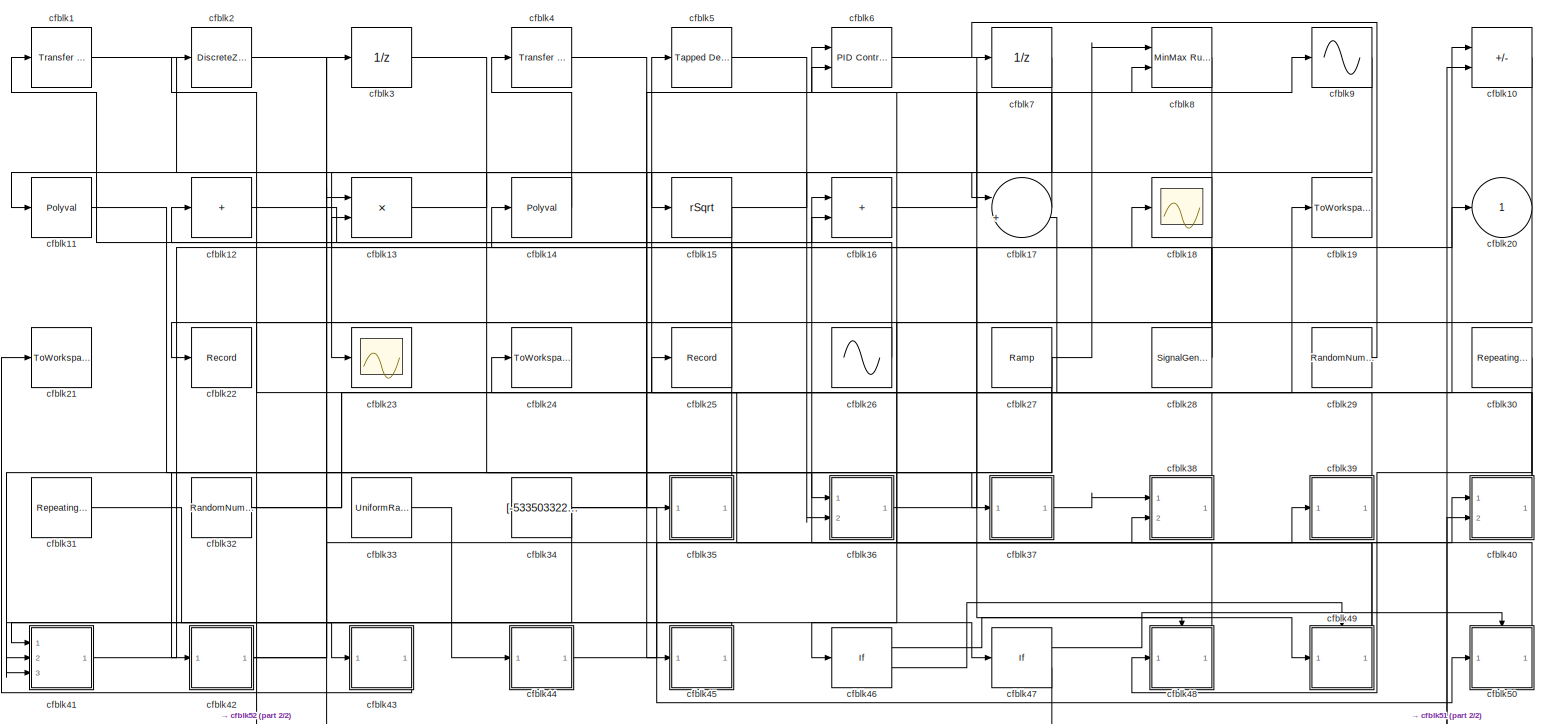
[diagram: root canvas - part 1/2, most of the canvas]
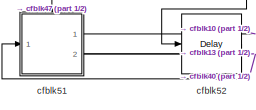
[diagram: root canvas - part 2/2, bottom left region]
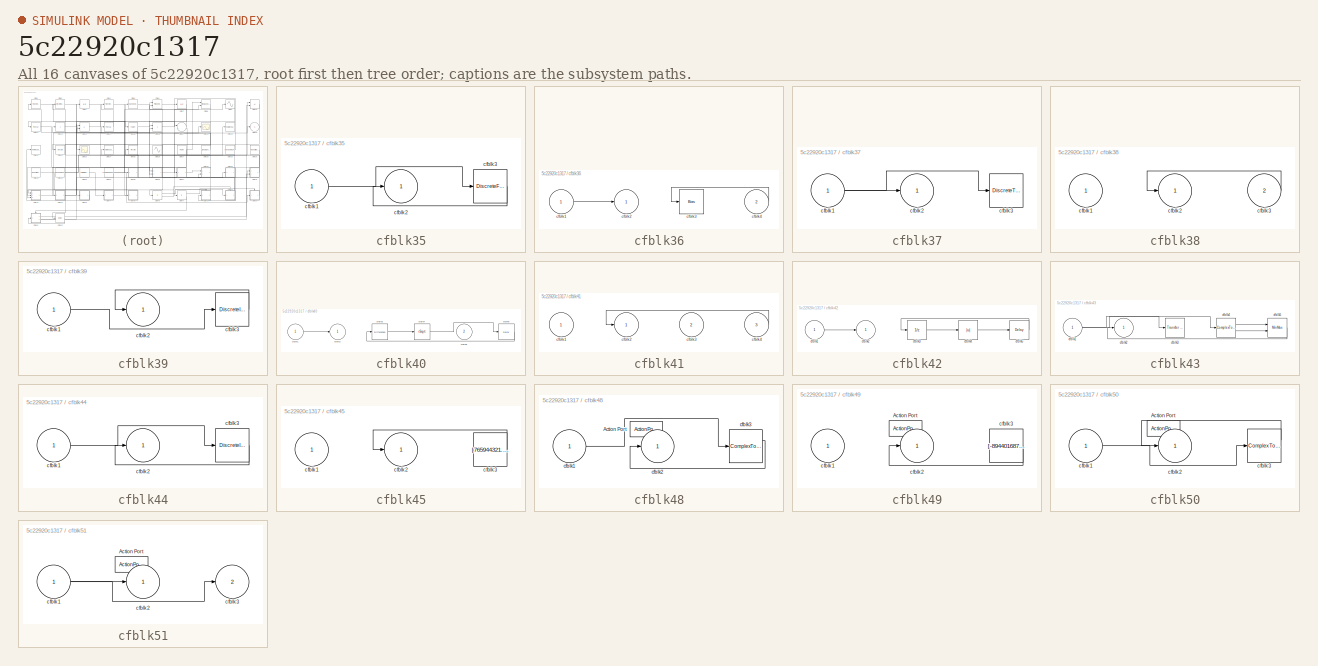
[diagram: thumbnail index - all 16 canvases of the model, root first then tree order]
MODEL slx_5c22920c1317
KIND model
CONFIG AbsTol = auto
CONFIG EnableMultiTasking = off
CONFIG FixedStep = auto
CONFIG MaxStep = auto
CONFIG MinStep = auto
CONFIG RelTol = 1e-3
CONFIG SampleTimeConstraint = Unconstrained
CONFIG SolverName = VariableStepAuto
CONFIG StartTime = 0.0
CONFIG StopTime = 10.0
BLOCK [Reference] cfblk1  REF=simulink/Discrete/Transfer Fcn
Real Zero
  Ports = [1, 1]
  SourceBlock = simulink/Discrete/Transfer Fcn\nReal Zero
  SourceProductBaseCode = SL
  SourceType = Transfer Fcn Real Zero
BLOCK [Sum] cfblk10
  IconShape = rectangular
  Inputs = +-
  Ports = [2, 1]
BLOCK [Polyval] cfblk11
  Coefs = [ +2.081618890e-019, -1.441693666e-014, +4.719686976e-010, -8.536869453e-006, +1.621573104e-001, -8.087801117e+001 ]
BLOCK [Sum] cfblk12
  IconShape = rectangular
  Inputs = +
  Ports = [1, 1]
BLOCK [Product] cfblk13
  Inputs = **
  Ports = [2, 1]
BLOCK [Polyval] cfblk14
  Coefs = [ +2.081618890e-019, -1.441693666e-014, +4.719686976e-010, -8.536869453e-006, +1.621573104e-001, -8.087801117e+001 ]
BLOCK [Sqrt] cfblk15
  AlgorithmType = Newton-Raphson
  Operator = rSqrt
BLOCK [Sum] cfblk16
  IconShape = rectangular
  Ports = [2, 1]
BLOCK [Sum] cfblk17
  Inputs = |++
  Ports = [2, 1]
BLOCK [Scope] cfblk18
  Floating = off
  NumInputPorts = 1
  Ports = [1]
BLOCK [ToWorkspace] cfblk19
  FixptAsFi = on
  MaxDataPoints = inf
  Ports = [1]
  SampleTime = -1
  SaveFormat = Timeseries
  VariableName = buvjzhm
BLOCK [DiscreteZeroPole] cfblk2
  Gain = 1
  Poles = [0 0.5]
BLOCK [Outport] cfblk20
BLOCK [ToWorkspace] cfblk21
  FixptAsFi = on
  MaxDataPoints = inf
  Ports = [1]
  SampleTime = -1
  SaveFormat = Timeseries
  VariableName = uewtmpb
BLOCK [Record] cfblk22
  FileSettingsInternal = {"entries":[{"content":{"excelSettings":{"content":{},"type":"Streamout.ExcelSettings"}},"type":"Streamout.FileSettingStorage","uuid":"001b1c03-1b9a-4206-ba14-e1a65e2b6dee"}],"packageUris":["http://schema.mathworks.com/mf0/streamout_blocks/R2020a"],"version":"1.0"}
  Ports = [1]
  SignalsInternal = {"entries":[{"content":{"signals":[{"content":{"blockPath":["sampleModel108/cfblk22"],"channel":[],"dimensions":[1],"domain":"sampleModel108/cfblk22","lineColor":"#edb120","plots":[1],"port":1,"sid":[""],"signalID":3819,"signalName":"cfblk15"},"type":"RecordBlkView.Signal","uuid":"c14f24dc-517d-4b14-9c6c-5f234a6a3d35"}]},"type":"RecordBlkView.InputSignals","uuid":"03286de0-e967-40d7-b892-a908d484e...<+97ch>
  VisualizationBindings = {"sparklinesplugin":{"info":[{"bindingParametersList":[],"subplotID":1}]}}
BLOCK [Scope] cfblk23
  Floating = off
  NumInputPorts = 1
  Ports = [1]
BLOCK [ToWorkspace] cfblk24
  FixptAsFi = on
  MaxDataPoints = inf
  Ports = [1]
  SampleTime = -1
  SaveFormat = Timeseries
  VariableName = feboyhm
BLOCK [Record] cfblk25
  FileSettingsInternal = {"entries":[{"content":{"excelSettings":{"content":{},"type":"Streamout.ExcelSettings"}},"type":"Streamout.FileSettingStorage","uuid":"abbdaaeb-bfa7-4130-ae6d-2dc964ecb0b2"}],"packageUris":["http://schema.mathworks.com/mf0/streamout_blocks/R2020a"],"version":"1.0"}
  Ports = [1]
  SignalsInternal = {"entries":[{"content":{"signals":[{"content":{"blockPath":["sampleModel108/cfblk25"],"channel":[],"dimensions":[1],"domain":"sampleModel108/cfblk25","lineColor":"#7e2f8e","plots":[1],"port":1,"sid":[""],"signalID":3823,"signalName":"cfblk50"},"type":"RecordBlkView.Signal","uuid":"64a622d0-8ad5-4104-894f-c9aafd74877a"}]},"type":"RecordBlkView.InputSignals","uuid":"17d718b0-2577-4f4e-ad25-bdc57ca26...<+97ch>
  VisualizationBindings = {"sparklinesplugin":{"info":[{"bindingParametersList":[],"subplotID":1}]}}
BLOCK [Sin] cfblk26
  Amplitude = [-496472036.710495]
  Bias = [-359639312.603698]
  Ports = [0, 1]
  SampleTime = 0
BLOCK [Reference] cfblk27  REF=simulink/Sources/Ramp
  Ports = [0, 1]
  SourceBlock = simulink/Sources/Ramp
  SourceProductBaseCode = SL
  SourceType = Ramp
BLOCK [SignalGenerator] cfblk28
  Amplitude = [-960338777.696214]
  Ports = [0, 1]
  WaveForm = sawtooth
BLOCK [RandomNumber] cfblk29
  Mean = [-66230.144972]
  SampleTime = 0.1
  Seed = [238155845.000000]
  Variance = [94247.145385]
BLOCK [UnitDelay] cfblk3
  HasFrameUpgradeWarning = on
BLOCK [Reference] cfblk30  REF=simulink/Sources/Repeating
Sequence
Interpolated
  Ports = [0, 1]
  SourceBlock = simulink/Sources/Repeating\nSequence\nInterpolated
  SourceProductBaseCode = SL
  SourceType = Repeating Sequence Interpolated
BLOCK [Reference] cfblk31  REF=simulink/Sources/Repeating
Sequence
Interpolated
  Ports = [0, 1]
  SourceBlock = simulink/Sources/Repeating\nSequence\nInterpolated
  SourceProductBaseCode = SL
  SourceType = Repeating Sequence Interpolated
BLOCK [RandomNumber] cfblk32
  Mean = [31789.555588]
  SampleTime = 0.1
  Seed = [547000665.000000]
  Variance = [61002.776115]
BLOCK [UniformRandomNumber] cfblk33
  Maximum = [5305807397.560600]
  Minimum = [-7974569136.520132]
  SampleTime = 0.1
  Seed = [57992090.000000]
BLOCK [Constant] cfblk34
  SampleTime = 1
  Value = [-533503322.890448]
BLOCK [SubSystem] cfblk35
  Ports = [1, 1]
  RequestExecContextInheritance = off
BLOCK [Inport] cfblk35/cfblk1
BLOCK [Outport] cfblk35/cfblk2
BLOCK [DiscreteFir] cfblk35/cfblk3
  InputPortMap = u0
  OutputPortMap = o0
  Ports = [1, 1]
  SampleTime = 1
BLOCK [SubSystem] cfblk36
  Ports = [2, 1]
  RequestExecContextInheritance = off
BLOCK [Inport] cfblk36/cfblk1
BLOCK [Outport] cfblk36/cfblk2
BLOCK [Bias] cfblk36/cfblk3
  Bias = [-300339976.505439]
  SaturateOnIntegerOverflow = off
BLOCK [Inport] cfblk36/cfblk4
  Port = 2
BLOCK [SubSystem] cfblk37
  Ports = [1, 1]
  RequestExecContextInheritance = off
BLOCK [Inport] cfblk37/cfblk1
BLOCK [Outport] cfblk37/cfblk2
BLOCK [DiscreteTransferFcn] cfblk37/cfblk3
  InputPortMap = u0
  Ports = [1, 1]
  SampleTime = 1
BLOCK [SubSystem] cfblk38
  Ports = [2, 1]
  RequestExecContextInheritance = off
BLOCK [Inport] cfblk38/cfblk1
BLOCK [Outport] cfblk38/cfblk2
BLOCK [Inport] cfblk38/cfblk3
  Port = 2
BLOCK [SubSystem] cfblk39
  Ports = [1, 1]
  RequestExecContextInheritance = off
BLOCK [Inport] cfblk39/cfblk1
BLOCK [Outport] cfblk39/cfblk2
BLOCK [DiscreteIntegrator] cfblk39/cfblk3
  ICPrevOutput = DiscIntNeverNeededParam
  ICPrevScaledInput = DiscIntNeverNeededParam
  InitialConditionSetting = Auto
  Ports = [1, 1]
BLOCK [Reference] cfblk4  REF=simulink/Discrete/Transfer Fcn
Real Zero
  Ports = [1, 1]
  SourceBlock = simulink/Discrete/Transfer Fcn\nReal Zero
  SourceProductBaseCode = SL
  SourceType = Transfer Fcn Real Zero
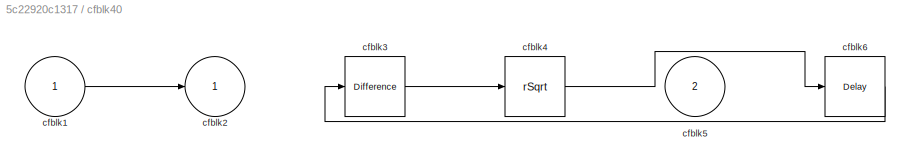
BLOCK [SubSystem] cfblk40
  Ports = [2, 1]
  RequestExecContextInheritance = off
BLOCK [Inport] cfblk40/cfblk1
BLOCK [Outport] cfblk40/cfblk2
BLOCK [Reference] cfblk40/cfblk3  REF=simulink/Discrete/Difference
  Ports = [1, 1]
  SourceBlock = simulink/Discrete/Difference
  SourceProductBaseCode = SL
  SourceType = Difference
BLOCK [Sqrt] cfblk40/cfblk4
  AlgorithmType = Newton-Raphson
  Operator = rSqrt
BLOCK [Inport] cfblk40/cfblk5
  Port = 2
BLOCK [Delay] cfblk40/cfblk6
  InputPortMap = u0
  Ports = [1, 1]
  SampleTime = 1
BLOCK [SubSystem] cfblk41
  Ports = [3, 1]
  RequestExecContextInheritance = off
BLOCK [Inport] cfblk41/cfblk1
BLOCK [Outport] cfblk41/cfblk2
BLOCK [Inport] cfblk41/cfblk3
  Port = 2
BLOCK [Inport] cfblk41/cfblk4
  Port = 3
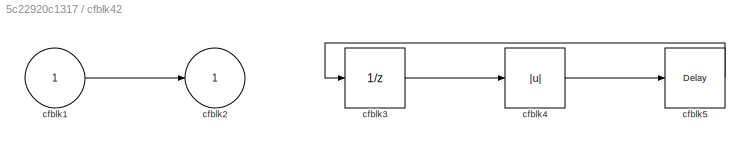
BLOCK [SubSystem] cfblk42
  Ports = [1, 1]
  RequestExecContextInheritance = off
BLOCK [Inport] cfblk42/cfblk1
BLOCK [Outport] cfblk42/cfblk2
BLOCK [UnitDelay] cfblk42/cfblk3
  HasFrameUpgradeWarning = on
BLOCK [Abs] cfblk42/cfblk4
  SaturateOnIntegerOverflow = off
BLOCK [Delay] cfblk42/cfblk5
  InputPortMap = u0
  Ports = [1, 1]
  SampleTime = 1
BLOCK [SubSystem] cfblk43
  Ports = [1, 1]
  RequestExecContextInheritance = off
BLOCK [Inport] cfblk43/cfblk1
BLOCK [Outport] cfblk43/cfblk2
BLOCK [Reference] cfblk43/cfblk3  REF=simulink/Discrete/Transfer Fcn
Real Zero
  Ports = [1, 1]
  SourceBlock = simulink/Discrete/Transfer Fcn\nReal Zero
  SourceProductBaseCode = SL
  SourceType = Transfer Fcn Real Zero
BLOCK [ComplexToMagnitudeAngle] cfblk43/cfblk4
  Ports = [1, 2]
BLOCK [MinMax] cfblk43/cfblk5
  Function = max
  Inputs = 2
  Ports = [2, 1]
BLOCK [SubSystem] cfblk44
  Ports = [1, 1]
  RequestExecContextInheritance = off
BLOCK [Inport] cfblk44/cfblk1
BLOCK [Outport] cfblk44/cfblk2
BLOCK [DiscreteIntegrator] cfblk44/cfblk3
  ICPrevOutput = DiscIntNeverNeededParam
  ICPrevScaledInput = DiscIntNeverNeededParam
  InitialConditionSetting = Auto
  Ports = [1, 1]
BLOCK [SubSystem] cfblk45
  Ports = [1, 1]
  RequestExecContextInheritance = off
BLOCK [Inport] cfblk45/cfblk1
BLOCK [Outport] cfblk45/cfblk2
BLOCK [Constant] cfblk45/cfblk3
  SampleTime = 1
  Value = [765944321.386147]
BLOCK [If] cfblk46
  IfExpression = u1 >= 0
  Ports = [1, 2]
  SampleTime = 1
BLOCK [If] cfblk47
  IfExpression = u1 >= 0
  Ports = [1, 2]
  SampleTime = 1
BLOCK [SubSystem] cfblk48
  Ports = [1, 1, 0, 0, 0, 0, 0, 1]
  RequestExecContextInheritance = off
  TreatAsAtomicUnit = on
BLOCK [ActionPort] cfblk48/Action Port
  ActionPortLabel = if(u1 >= 0)
BLOCK [Inport] cfblk48/cfblk1
BLOCK [Outport] cfblk48/cfblk2
BLOCK [ComplexToRealImag] cfblk48/cfblk3
  Ports = [1, 2]
BLOCK [SubSystem] cfblk49
  Ports = [1, 1, 0, 0, 0, 0, 0, 1]
  RequestExecContextInheritance = off
  TreatAsAtomicUnit = on
BLOCK [ActionPort] cfblk49/Action Port
  ActionPortLabel = else
BLOCK [Inport] cfblk49/cfblk1
BLOCK [Outport] cfblk49/cfblk2
BLOCK [Constant] cfblk49/cfblk3
  SampleTime = 1
  Value = [-894401687.427975]
BLOCK [Reference] cfblk5  REF=simulink/Discrete/Tapped Delay
  Ports = [1, 1]
  SourceBlock = simulink/Discrete/Tapped Delay
  SourceProductBaseCode = SL
  SourceType = Tapped Delay Line
BLOCK [SubSystem] cfblk50
  Ports = [1, 1, 0, 0, 0, 0, 0, 1]
  RequestExecContextInheritance = off
  TreatAsAtomicUnit = on
BLOCK [ActionPort] cfblk50/Action Port
  ActionPortLabel = if(u1 >= 0)
BLOCK [Inport] cfblk50/cfblk1
BLOCK [Outport] cfblk50/cfblk2
BLOCK [ComplexToRealImag] cfblk50/cfblk3
  Ports = [1, 2]
BLOCK [SubSystem] cfblk51
  Ports = [1, 2, 0, 0, 0, 0, 0, 1]
  RequestExecContextInheritance = off
  TreatAsAtomicUnit = on
BLOCK [ActionPort] cfblk51/Action Port
  ActionPortLabel = else
BLOCK [Inport] cfblk51/cfblk1
BLOCK [Outport] cfblk51/cfblk2
BLOCK [Outport] cfblk51/cfblk3
  Port = 2
BLOCK [Delay] cfblk52
  InputPortMap = u0
  Ports = [1, 1]
  SampleTime = 1
BLOCK [Reference] cfblk6  REF=slpidlib/PID Controller (2DOF)
  Ports = [2, 1]
  SourceBlock = slpidlib/PID Controller (2DOF)
  SourceProductBaseCode = SL
  SourceType = PID 2dof
BLOCK [UnitDelay] cfblk7
  HasFrameUpgradeWarning = on
BLOCK [Reference] cfblk8  REF=simulink/Math
Operations/MinMax
Running
Resettable
  Ports = [2, 1]
  SourceBlock = simulink/Math\nOperations/MinMax\nRunning\nResettable
  SourceProductBaseCode = SL
  SourceType = MinMax Running Resettable
BLOCK [Sin] cfblk9
  Ports = [1, 1]
  SampleTime = 0
  TimeSource = Use external signal
LINE cfblk10:1 -> cfblk52:1
LINE cfblk11:1 -> cfblk37:1
LINE cfblk12:1 -> cfblk16:2
LINE cfblk13:1 -> cfblk15:1
LINE cfblk14:1 -> cfblk4:1
NET cfblk15:1 -> cfblk17:1, cfblk22:1
LINE cfblk16:1 -> cfblk9:1
LINE cfblk17:1 -> cfblk6:1
LINE cfblk1:1 -> cfblk35:1
LINE cfblk26:1 -> cfblk1:1
NET cfblk27:1 -> cfblk41:2, cfblk42:1, cfblk8:1
NET cfblk28:1 -> cfblk13:2, cfblk14:1
LINE cfblk29:1 -> cfblk7:1
LINE cfblk2:1 -> cfblk47:1
LINE cfblk30:1 -> cfblk48:1
LINE cfblk31:1 -> cfblk43:1
NET cfblk32:1 -> cfblk10:1, cfblk19:1
LINE cfblk33:1 -> cfblk44:1
NET cfblk34:1 -> cfblk41:3, cfblk50:1, cfblk8:2
LINE cfblk35/cfblk1:1 -> cfblk35/cfblk3:1
LINE cfblk35/cfblk3:1 -> cfblk35/cfblk2:1
LINE cfblk35:1 -> cfblk12:1
LINE cfblk36/cfblk1:1 -> cfblk36/cfblk2:1
LINE cfblk36/cfblk4:1 -> cfblk36/cfblk3:1
LINE cfblk36:1 -> cfblk20:1
NET cfblk37/cfblk1:1 -> cfblk37/cfblk2:1, cfblk37/cfblk3:1
LINE cfblk37:1 -> cfblk38:1
LINE cfblk38/cfblk3:1 -> cfblk38/cfblk2:1
LINE cfblk38:1 -> cfblk24:1
LINE cfblk39/cfblk1:1 -> cfblk39/cfblk3:1
LINE cfblk39/cfblk3:1 -> cfblk39/cfblk2:1
LINE cfblk39:1 -> cfblk2:1
LINE cfblk3:1 -> cfblk36:1
LINE cfblk40/cfblk1:1 -> cfblk40/cfblk2:1
LINE cfblk40/cfblk3:1 -> cfblk40/cfblk4:1
LINE cfblk40/cfblk4:1 -> cfblk40/cfblk6:1
LINE cfblk40/cfblk6:1 -> cfblk40/cfblk3:1
NET cfblk40:1 -> cfblk17:2, cfblk5:1
LINE cfblk41/cfblk4:1 -> cfblk41/cfblk2:1
LINE cfblk41:1 -> cfblk18:1
LINE cfblk42/cfblk1:1 -> cfblk42/cfblk2:1
LINE cfblk42/cfblk3:1 -> cfblk42/cfblk4:1
LINE cfblk42/cfblk4:1 -> cfblk42/cfblk5:1
LINE cfblk42/cfblk5:1 -> cfblk42/cfblk3:1
NET cfblk42:1 -> cfblk3:1, cfblk40:1
NET cfblk43/cfblk1:1 -> cfblk43/cfblk3:1, cfblk43/cfblk4:1
LINE cfblk43/cfblk4:1 -> cfblk43/cfblk5:1
LINE cfblk43/cfblk4:2 -> cfblk43/cfblk5:2
LINE cfblk43/cfblk5:1 -> cfblk43/cfblk2:1
LINE cfblk43:1 -> cfblk21:1
LINE cfblk44/cfblk1:1 -> cfblk44/cfblk3:1
LINE cfblk44/cfblk3:1 -> cfblk44/cfblk2:1
LINE cfblk44:1 -> cfblk39:1
LINE cfblk45/cfblk3:1 -> cfblk45/cfblk2:1
LINE cfblk45:1 -> cfblk41:1
LINE cfblk46:1 -> cfblk48:ifaction
LINE cfblk46:2 -> cfblk49:ifaction
LINE cfblk47:1 -> cfblk50:ifaction
LINE cfblk47:2 -> cfblk51:ifaction
LINE cfblk48/cfblk1:1 -> cfblk48/cfblk3:1
LINE cfblk48/cfblk3:1 -> cfblk48/cfblk2:1
LINE cfblk48:1 -> cfblk6:2
LINE cfblk49/cfblk3:1 -> cfblk49/cfblk2:1
NET cfblk49:1 -> cfblk16:1, cfblk38:2
LINE cfblk4:1 -> cfblk45:1
LINE cfblk50/cfblk1:1 -> cfblk50/cfblk3:1
LINE cfblk50/cfblk3:1 -> cfblk50/cfblk2:1
LINE cfblk50:1 -> cfblk25:1
NET cfblk51/cfblk1:1 -> cfblk51/cfblk2:1, cfblk51/cfblk3:1
LINE cfblk51:1 -> cfblk10:2
NET cfblk51:2 -> cfblk13:1, cfblk40:2
LINE cfblk52:1 -> cfblk51:1
LINE cfblk5:1 -> cfblk36:2
LINE cfblk6:1 -> cfblk49:1
LINE cfblk7:1 -> cfblk23:1
LINE cfblk8:1 -> cfblk46:1
LINE cfblk9:1 -> cfblk11:1
note: NET lines group one-source signal fan-out (src -> all destinations, sorted); 1:1 wires keep LINE
